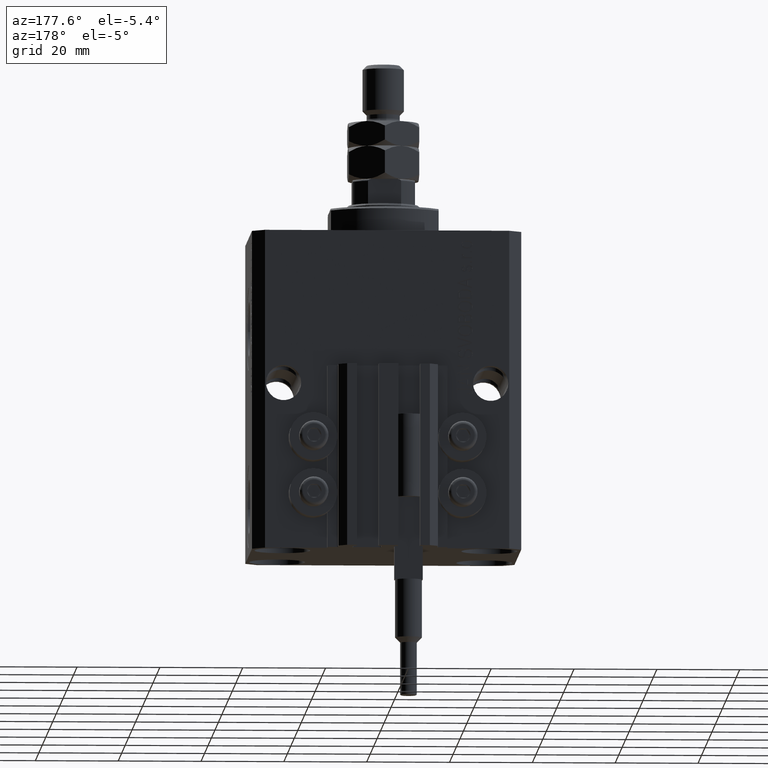
[diagram: clean part render]
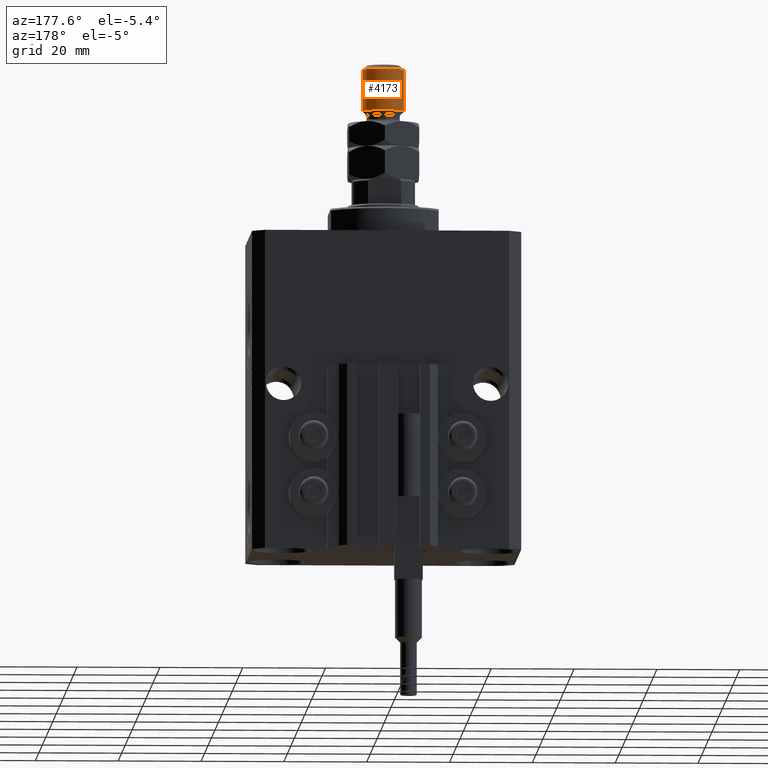
[diagram: same view with one face highlighted and labeled with its STEP entity id]
A machine part, auxiliary view. The second image highlights one B-rep face of the part: STEP entity #4173.
In plain terms, the highlighted cylindrical surface (edge-blend (fillet) strip) has radius 5 mm, axis along (-0, -0, -1).
Its self-contained STEP definition (entity closure, byte-faithful):
#882 = CYLINDRICAL_SURFACE ( 'NONE', #37630, 5.000000000000000000 ) ;
#4173 = ADVANCED_FACE ( 'NONE', ( #23915 ), #882, .T. ) ;
#5223 = LINE ( 'NONE', #32297, #31798 ) ;
#5401 = CARTESIAN_POINT ( 'NONE',  ( -5.000000000000000000, 0.000000000000000000, 26.99999999999998934 ) ) ;
#5437 = CARTESIAN_POINT ( 'NONE',  ( 0.000000000000000000, 0.000000000000000000, 28.00000000000000000 ) ) ;
#5663 = CARTESIAN_POINT ( 'NONE',  ( 5.000000000000000000, 6.123233995736766282E-16, 17.00000000000000355 ) ) ;
#7874 = CARTESIAN_POINT ( 'NONE',  ( 5.000000000000000000, 6.123233995736766282E-16, 28.00000000000000000 ) ) ;
#9091 = EDGE_CURVE ( 'NONE', #24602, #41116, #28185, .T. ) ;
#12961 = EDGE_CURVE ( 'NONE', #39610, #24602, #42540, .T. ) ;
#14836 = VERTEX_POINT ( 'NONE', #5401 ) ;
#16667 = DIRECTION ( 'NONE',  ( 1.000000000000000000, 0.000000000000000000, 0.000000000000000000 ) ) ;
#17173 = DIRECTION ( 'NONE',  ( -0.000000000000000000, -0.000000000000000000, 1.000000000000000000 ) ) ;
#17612 = EDGE_CURVE ( 'NONE', #14836, #39610, #20397, .T. ) ;
#18366 = ORIENTED_EDGE ( 'NONE', *, *, #12961, .T. ) ;
#18898 = CARTESIAN_POINT ( 'NONE',  ( 5.000000000000000000, 6.123233995736766282E-16, 26.99999999999998934 ) ) ;
#19509 = DIRECTION ( 'NONE',  ( -0.000000000000000000, -0.000000000000000000, -1.000000000000000000 ) ) ;
#20397 = CIRCLE ( 'NONE', #47785, 5.000000000000000000 ) ;
#21807 = DIRECTION ( 'NONE',  ( 1.000000000000000000, 0.000000000000000000, 0.000000000000000000 ) ) ;
#23460 = EDGE_CURVE ( 'NONE', #14836, #41116, #5223, .T. ) ;
#23915 = FACE_OUTER_BOUND ( 'NONE', #39806, .T. ) ;
#24602 = VERTEX_POINT ( 'NONE', #5663 ) ;
#24709 = DIRECTION ( 'NONE',  ( -0.000000000000000000, -0.000000000000000000, -1.000000000000000000 ) ) ;
#25900 = ORIENTED_EDGE ( 'NONE', *, *, #23460, .F. ) ;
#27533 = VECTOR ( 'NONE', #19509, 1000.000000000000000 ) ;
#28185 = CIRCLE ( 'NONE', #46767, 5.000000000000000000 ) ;
#31798 = VECTOR ( 'NONE', #24709, 1000.000000000000000 ) ;
#32008 = DIRECTION ( 'NONE',  ( -0.000000000000000000, -0.000000000000000000, -1.000000000000000000 ) ) ;
#32297 = CARTESIAN_POINT ( 'NONE',  ( -5.000000000000000000, 0.000000000000000000, 28.00000000000000000 ) ) ;
#37630 = AXIS2_PLACEMENT_3D ( 'NONE', #5437, #32008, #47963 ) ;
#38826 = CARTESIAN_POINT ( 'NONE',  ( -5.000000000000000000, 0.000000000000000000, 17.00000000000000355 ) ) ;
#39610 = VERTEX_POINT ( 'NONE', #18898 ) ;
#39806 = EDGE_LOOP ( 'NONE', ( #43606, #18366, #46006, #25900 ) ) ;
#41116 = VERTEX_POINT ( 'NONE', #38826 ) ;
#41290 = DIRECTION ( 'NONE',  ( 0.000000000000000000, 0.000000000000000000, -1.000000000000000000 ) ) ;
#42540 = LINE ( 'NONE', #7874, #27533 ) ;
#43606 = ORIENTED_EDGE ( 'NONE', *, *, #17612, .T. ) ;
#45329 = CARTESIAN_POINT ( 'NONE',  ( 0.000000000000000000, 0.000000000000000000, 26.99999999999998934 ) ) ;
#46006 = ORIENTED_EDGE ( 'NONE', *, *, #9091, .T. ) ;
#46767 = AXIS2_PLACEMENT_3D ( 'NONE', #48057, #17173, #16667 ) ;
#47785 = AXIS2_PLACEMENT_3D ( 'NONE', #45329, #41290, #21807 ) ;
#47963 = DIRECTION ( 'NONE',  ( -1.000000000000000000, 0.000000000000000000, 0.000000000000000000 ) ) ;
#48057 = CARTESIAN_POINT ( 'NONE',  ( 0.000000000000000000, 0.000000000000000000, 17.00000000000000355 ) ) ;